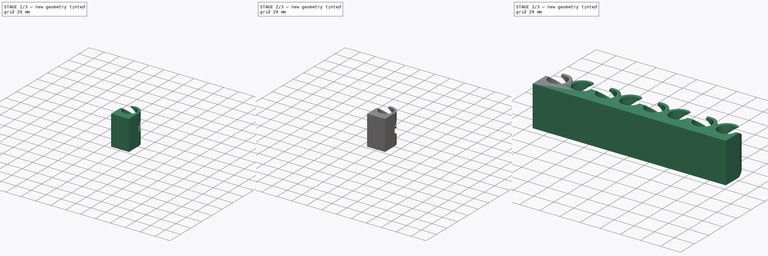
[diagram: build sequence overview — one tinted view per stage of 3, left to right]
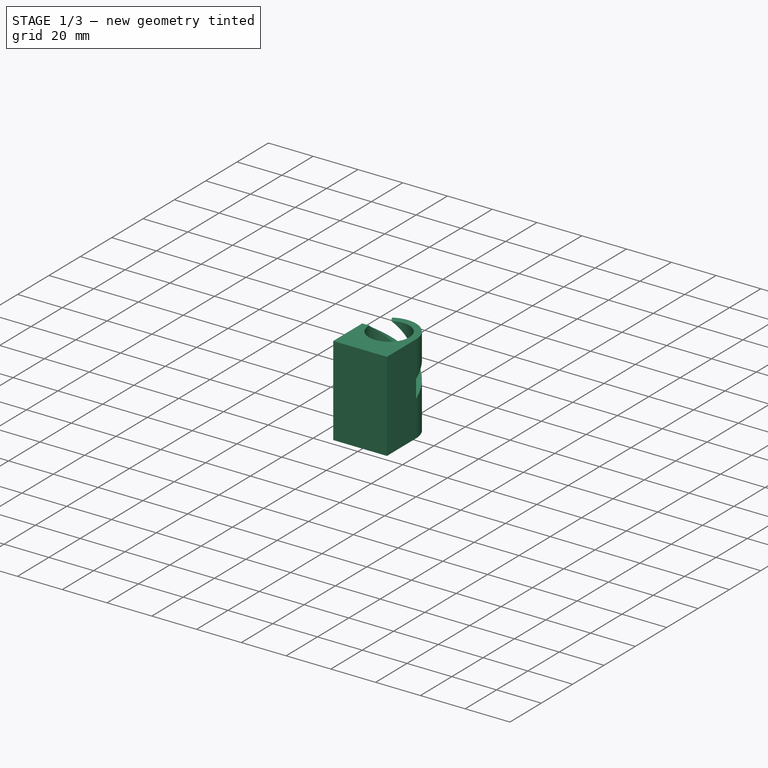
[diagram: stage 1 of 3 — iso view after this stage's code; geometry added in this stage tinted green]
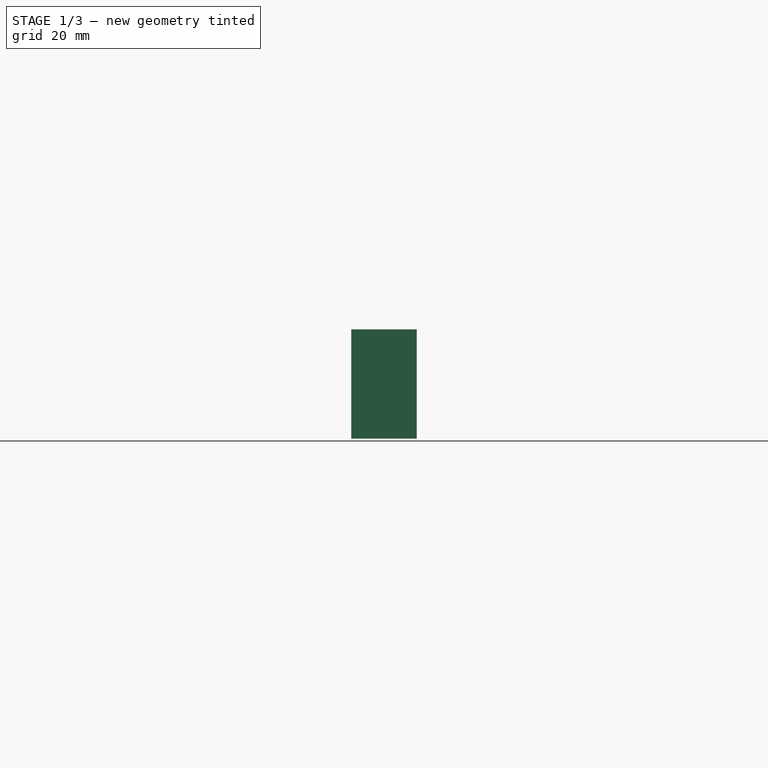
[diagram: stage 1 of 3 — front view after this stage's code; geometry added in this stage tinted green]
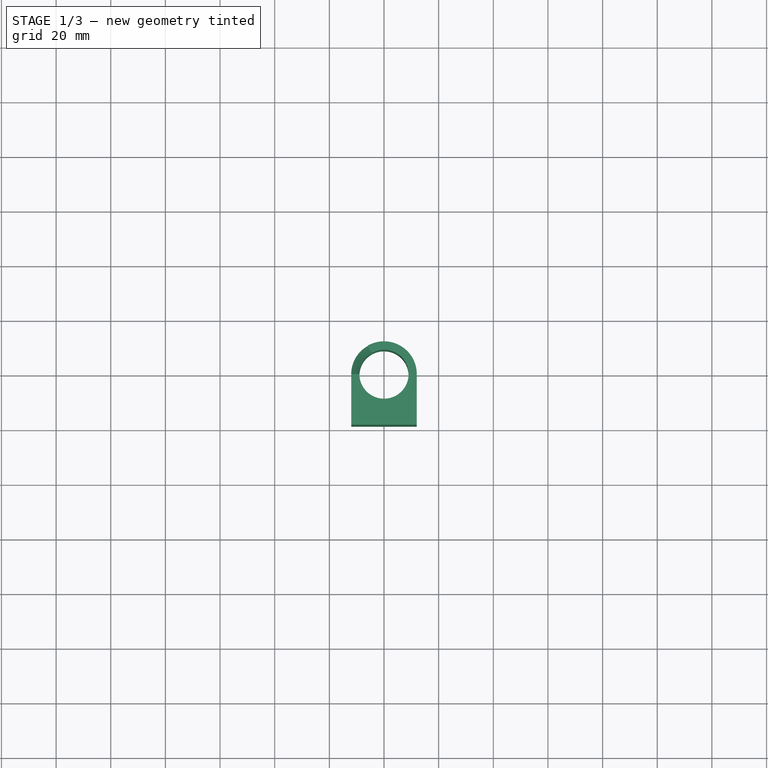
[diagram: stage 1 of 3 — top view after this stage's code; geometry added in this stage tinted green]
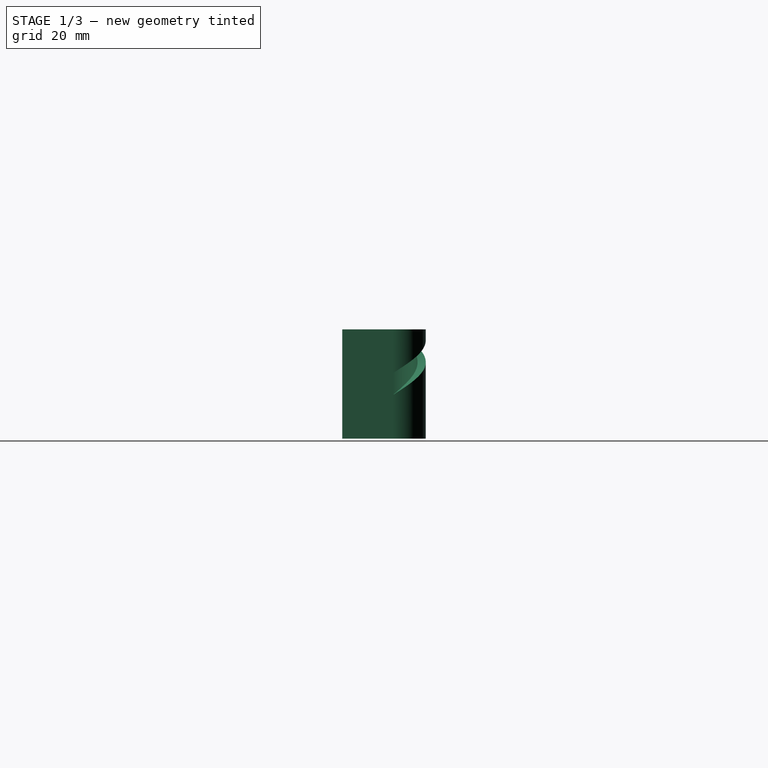
[diagram: stage 1 of 3 — right view after this stage's code; geometry added in this stage tinted green]
FCSTD DOCUMENT  (FreeCAD 1.1R20260325 (Git shallow))
Label: wire-holder
License: All rights reserved
LicenseURL: https://en.wikipedia.org/wiki/All_rights_reserved
objects: Sketcher::SketchObject×3, PartDesign::SubtractiveHelix×2, App::Point×1, PartDesign::Pad×1, PartDesign::Fillet×1, PartDesign::Pocket×1, PartDesign::Mirrored×1, PartDesign::LinearPattern×1, PartDesign::MultiTransform×1, PartDesign::Body×1
note: 28 computed .brp shape members not serialized (recipe doc carries the construction recipe); baked Part::Feature solids carry a one-line shape summary decoded from their .brp

FEATURE [App::Point] Origin001
  Role = Origin
FEATURE [Sketcher::SketchObject] Sketch
  ArcFitTolerance = 1e-06
  AttachmentSupport = -> [Origin]
  ExternalTypes = [0]
  FullyConstrained = false
  MakeInternals = true
  MapMode = 5
  _ExternalGeoVersion = 1
  sketch-geometry (5):
    g0: LineSegment StartX=-12 StartY=-18.5578 StartZ=0 EndX=12 EndY=-18.5578 EndZ=0
    g1: LineSegment StartX=12 StartY=-18.5578 StartZ=0 EndX=12 EndY=0 EndZ=0
    g2: LineSegment StartX=-12 StartY=0 StartZ=0 EndX=-12 EndY=-18.5578 EndZ=0
    g3: ArcOfCircle CenterX=0 CenterY=0 CenterZ=0 NormalX=0 NormalY=0 NormalZ=1 AngleXU=0 Radius=12 StartAngle=0 EndAngle=3.14159
    g4: Circle CenterX=0 CenterY=0 CenterZ=0 NormalX=0 NormalY=0 NormalZ=1 AngleXU=0 Radius=9
  constraints (11):
    c: Horizontal(g0)
    c: Vertical(g1)
    c: Vertical(g2)
    c: Coincident(g4,g3)
    c: Tangent(g3,g2) = -1.5708
    c: Tangent(g3,g1) = -1.5708
    c: Coincident(g0,g1)
    c: Coincident(g0,g2)
    c: Coincident(g3,g-1)
    c: Diameter(g4) = 18
    c: Radius(g3) = 12
FEATURE [PartDesign::Pad] Pad
  Direction = (0,0,1)
  Length = 40
  Length2 = 10
  Profile = -> Sketch
  ReferenceAxis = -> Sketch [N_Axis]
  Refine = true
  SideType = 2
  Suppressed = false
  Type = 0
  Type2 = 0
FEATURE [Sketcher::SketchObject] Sketch001
  ArcFitTolerance = 1e-06
  AttachmentOffset = pos=(10,0,0) rot=(0,0,1;0rad)
  AttachmentSupport = -> [Origin]
  ExternalTypes = [0]
  FullyConstrained = false
  MakeInternals = true
  MapMode = 5
  Placement = pos=(10,0,0) rot=(1,0,0;1.5708rad)
  _ExternalGeoVersion = 1
  sketch-geometry (5):
    g0: LineSegment StartX=-2.30408 StartY=4 StartZ=0 EndX=-2.30408 EndY=-4 EndZ=0
    g1: LineSegment StartX=-2.30408 StartY=-4 StartZ=0 EndX=2.30408 EndY=-4 EndZ=0
    g2: LineSegment StartX=2.30408 StartY=-4 StartZ=0 EndX=2.30408 EndY=4 EndZ=0
    g3: LineSegment StartX=2.30408 StartY=4 StartZ=0 EndX=-2.30408 EndY=4 EndZ=0
    g4: GeomPoint [constr] X=0 Y=0 Z=0
  constraints (11):
    c: Coincident(g0,g1)
    c: Coincident(g1,g2)
    c: Coincident(g2,g3)
    c: Coincident(g3,g0)
    c: Vertical(g0)
    c: Vertical(g2)
    c: Horizontal(g1)
    c: Horizontal(g3)
    c: Symmetric(g2,g0,g4)
    c: Coincident(g4,g-1)
    c: DistanceY(g2,g2) = 8
FEATURE [PartDesign::SubtractiveHelix] SubtractiveHelix
  Angle = 0
  Axis = (1e-16,1e-16,1)
  Base = (0,0,0)
  BaseFeature = -> Pad
  Growth = 0
  HasBeenEdited = true
  Height = 24
  LeftHanded = false
  Mode = 3
  Outside = false
  Pitch = 48
  Profile = -> Sketch001
  ReferenceAxis = -> Z_Axis
  Refine = true
  Suppressed = false
  Tolerance = 0.1
  Turns = 0.5
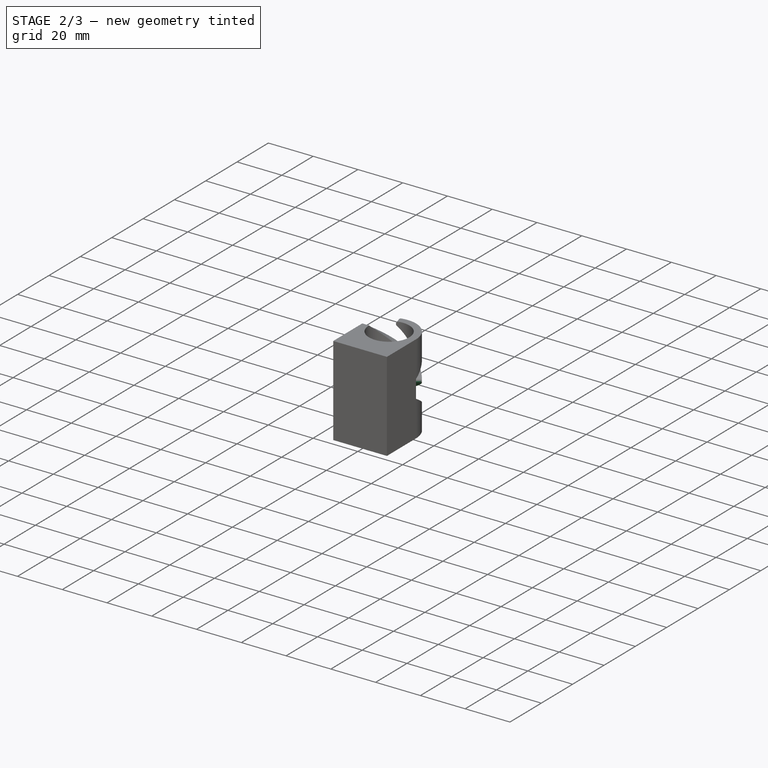
[diagram: stage 2 of 3 — iso view after this stage's code; geometry added in this stage tinted green]
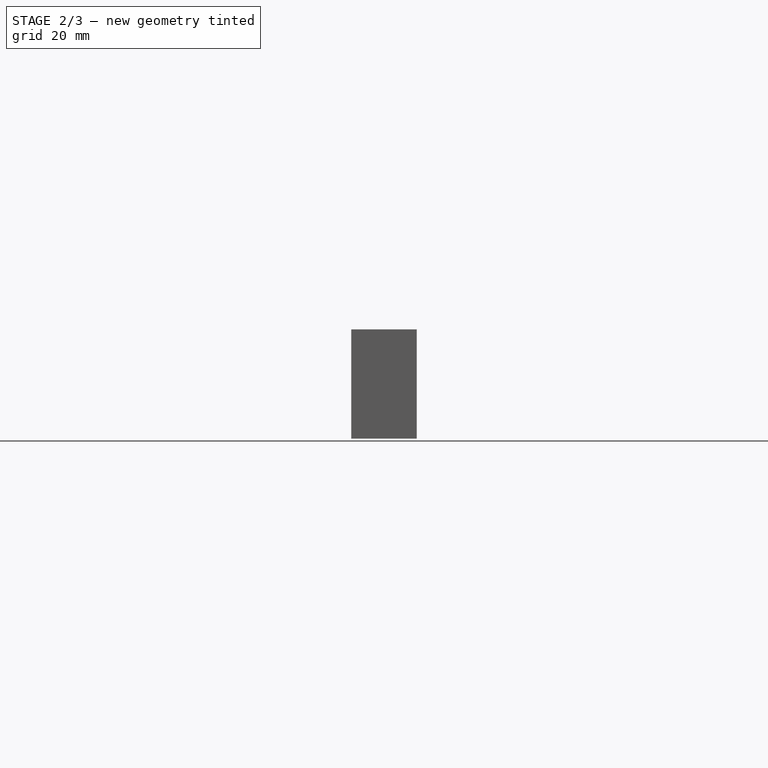
[diagram: stage 2 of 3 — front view after this stage's code; geometry added in this stage tinted green]
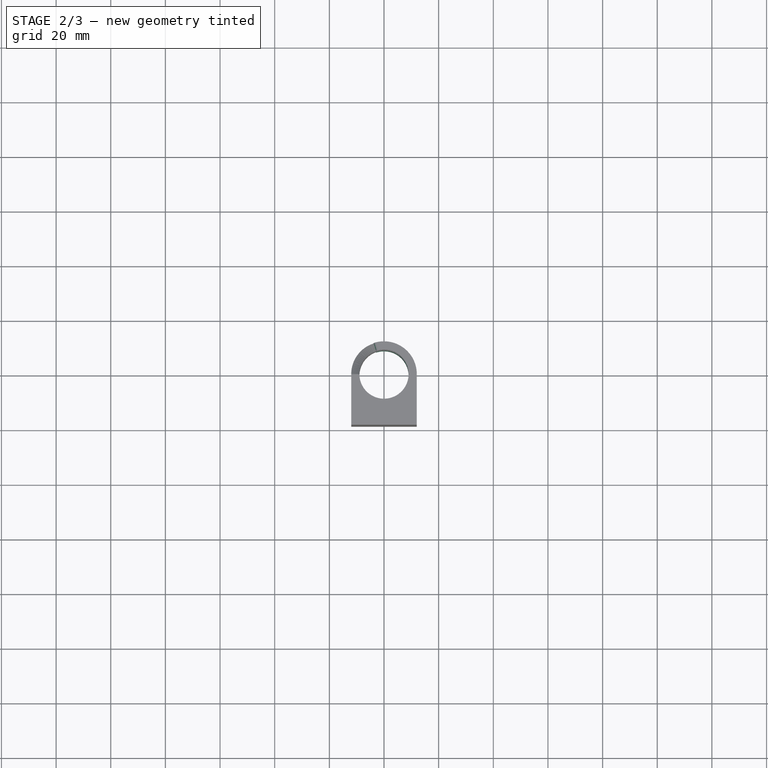
[diagram: stage 2 of 3 — top view after this stage's code; geometry added in this stage tinted green]
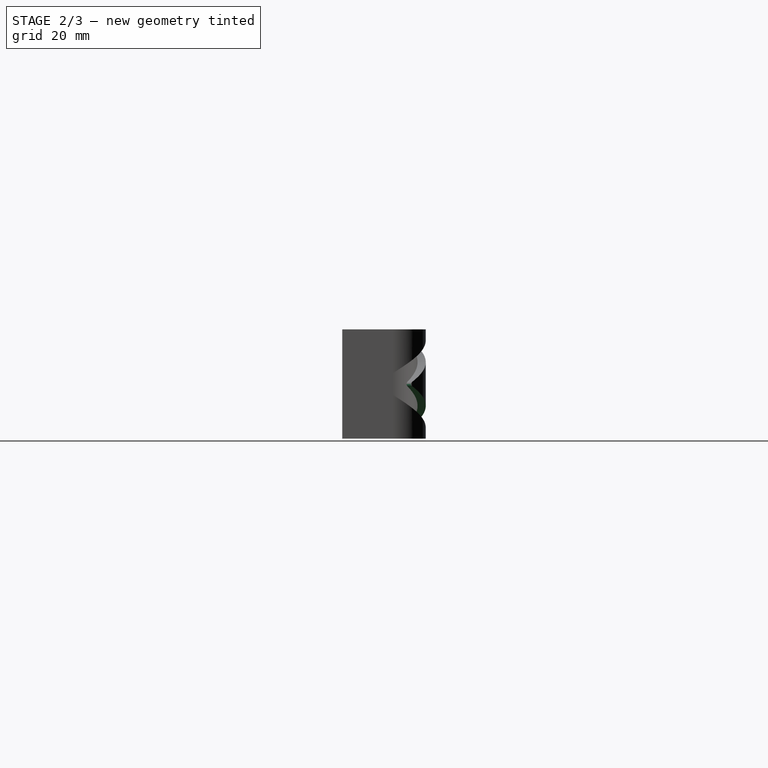
[diagram: stage 2 of 3 — right view after this stage's code; geometry added in this stage tinted green]
FEATURE [PartDesign::SubtractiveHelix] SubtractiveHelix001
  Angle = 0
  Axis = (1e-16,1e-16,1)
  Base = (0,0,0)
  BaseFeature = -> SubtractiveHelix
  Growth = 0
  HasBeenEdited = true
  Height = 24
  LeftHanded = true
  Mode = 3
  Outside = false
  Pitch = 48
  Profile = -> Sketch001
  ReferenceAxis = -> Z_Axis
  Refine = true
  Reversed = true
  Suppressed = false
  Tolerance = 0.1
  Turns = 0.5
FEATURE [PartDesign::Fillet] Fillet
  Base = -> SubtractiveHelix001 [Edge30,Edge21,Edge16]
  BaseFeature = -> SubtractiveHelix001
  Radius = 1
  Refine = true
  SupportTransform = false
  Suppressed = false
  UseAllEdges = false
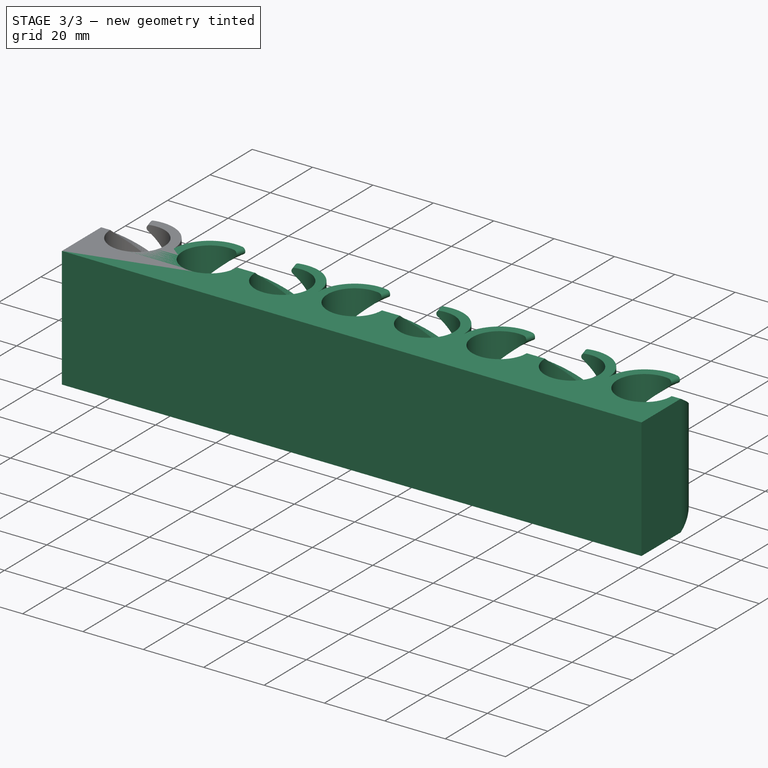
[diagram: stage 3 of 3 — iso view after this stage's code; geometry added in this stage tinted green]
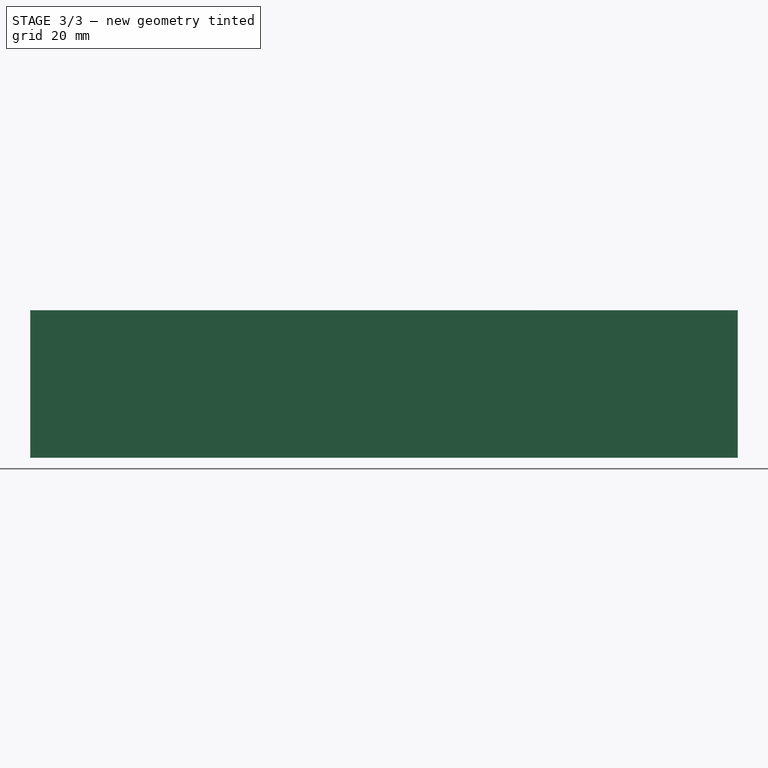
[diagram: stage 3 of 3 — front view after this stage's code; geometry added in this stage tinted green]
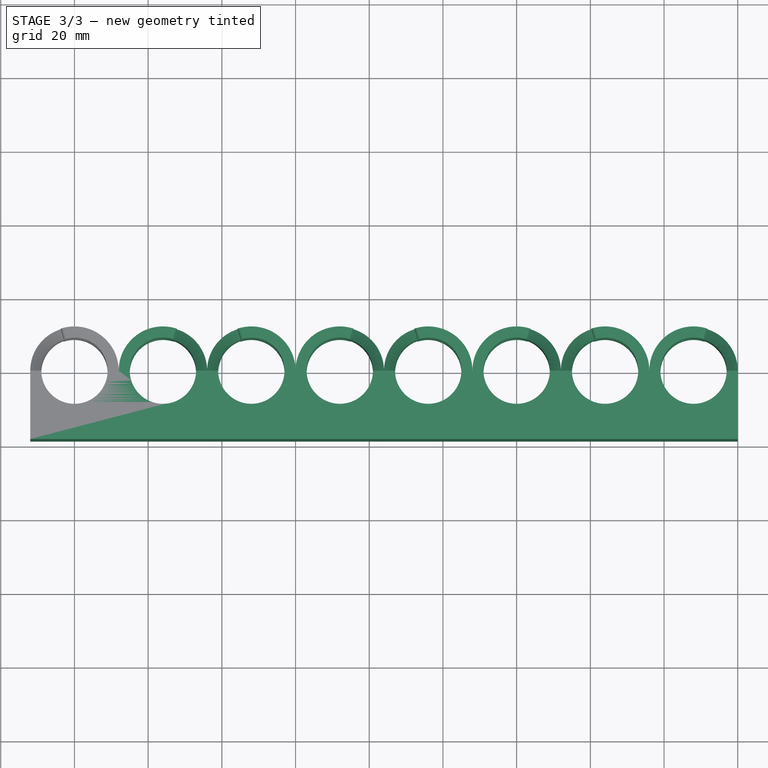
[diagram: stage 3 of 3 — top view after this stage's code; geometry added in this stage tinted green]
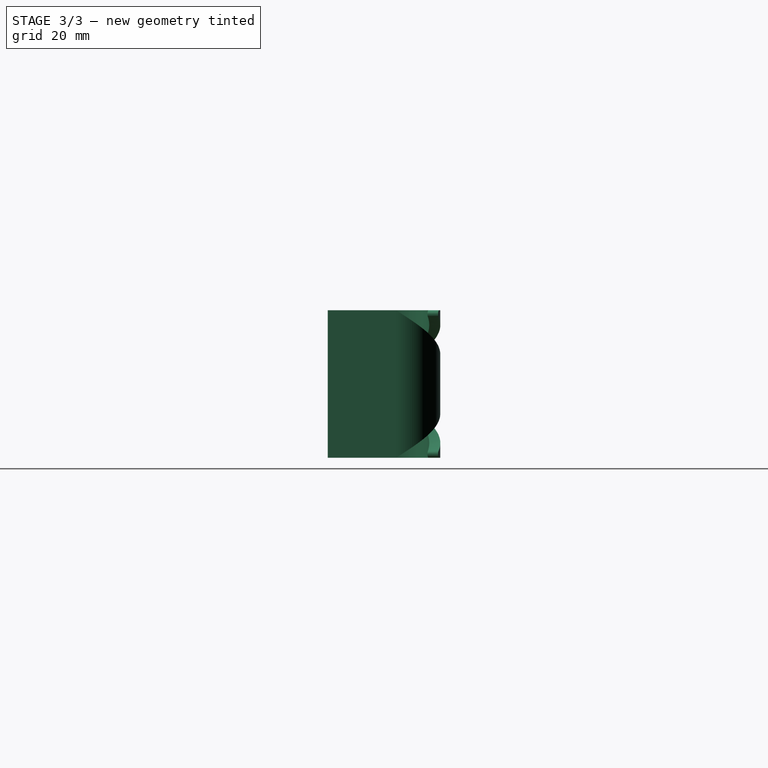
[diagram: stage 3 of 3 — right view after this stage's code; geometry added in this stage tinted green]
FEATURE [Sketcher::SketchObject] Sketch002
  ArcFitTolerance = 1e-06
  AttachmentSupport = -> [Origin]
  ExternalGeometry = -> [Fillet]
  ExternalTypes = [0]
  FullyConstrained = false
  MakeInternals = true
  MapMode = 5
  Placement = pos=(0,0,0) rot=(0.57735,0.57735,0.57735;2.0944rad)
  _ExternalGeoVersion = 1
  sketch-geometry (3):
    g0: ArcOfCircle CenterX=2.54648 CenterY=0 CenterZ=0 NormalX=0 NormalY=0 NormalZ=1 AngleXU=0 Radius=4.74179 StartAngle=2.13771 EndAngle=4.14548
    g1: LineSegment StartX=-4.4e-15 StartY=4 StartZ=0 EndX=-9.34938 EndY=-1.952 EndZ=0
    g2: LineSegment StartX=-4.4e-15 StartY=4 StartZ=0 EndX=-1.8e-15 EndY=-4 EndZ=0
  constraints (6):
    c: PointOnObject(g0,g-1)
    c: Tangent(g-3,g0) = 1.5708
    c: PointOnObject(g0,g-2)
    c: Tangent(g0,g1) = -1.5708
    c: Coincident(g0,g2)
    c: Coincident(g0,g2)
FEATURE [PartDesign::Pocket] Pocket
  BaseFeature = -> Fillet
  Direction = (-1,0,0)
  Length = 5
  Length2 = 5
  Profile = -> Sketch002 [InternalFace1]
  ReferenceAxis = -> Sketch002 [N_Axis]
  Refine = true
  Reversed = true
  SideType = 0
  Suppressed = false
  Type = 1
  Type2 = 0
FEATURE [PartDesign::Mirrored] Mirror
  MirrorPlane = -> Pocket [Face6]
  Refine = true
  Suppressed = false
  TransformMode = 0
FEATURE [PartDesign::LinearPattern] Linear_Pattern
  Direction = -> X_Axis
  Direction2 = -> X_Axis
  Length = 144
  Length2 = 100
  Mode = 1
  Mode2 = 0
  Occurrences = 4
  Occurrences2 = 1
  Offset = 48
  Offset2 = 100
  Refine = true
  Reversed2 = false
  SpacingPattern = [48]
  SpacingPattern2 = [0]
  Spacings = [-1,-1,-1]
  Suppressed = false
  TransformMode = 0
FEATURE [PartDesign::MultiTransform] MultiTransform
  BaseFeature = -> Pocket
  Refine = true
  Suppressed = false
  TransformMode = 1
  Transformations = -> [Mirror,Linear_Pattern]
FEATURE [PartDesign::Body] Body
  AllowCompound = true
  Group = -> [Sketch,Pad,Sketch001,SubtractiveHelix,SubtractiveHelix001,Fillet,Sketch002,Pocket,MultiTransform,Mirror,Linear_Pattern]
  Origin = -> Origin
  Tip = -> MultiTransform
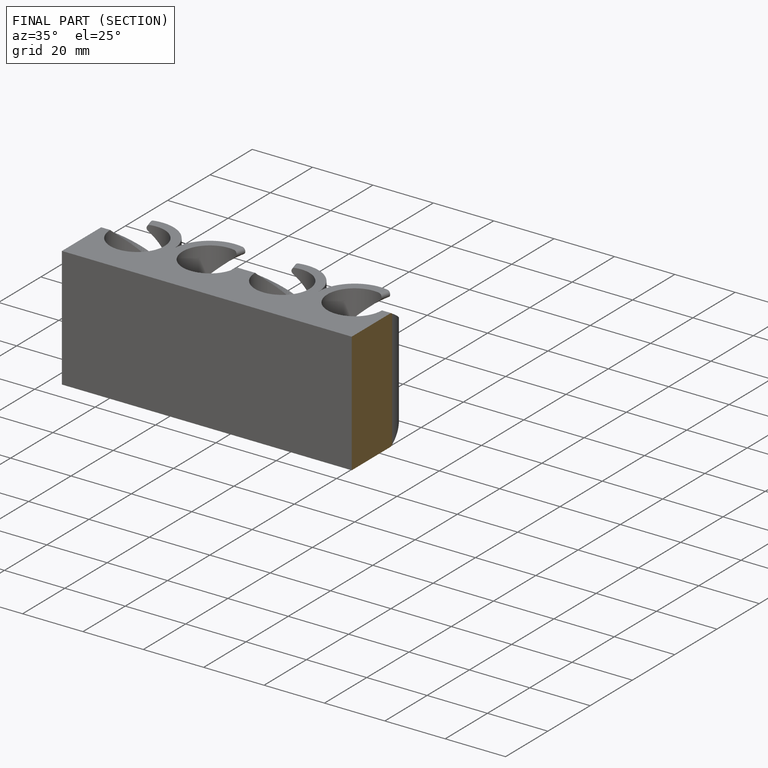
[diagram: finished part — half-section view (interior)]
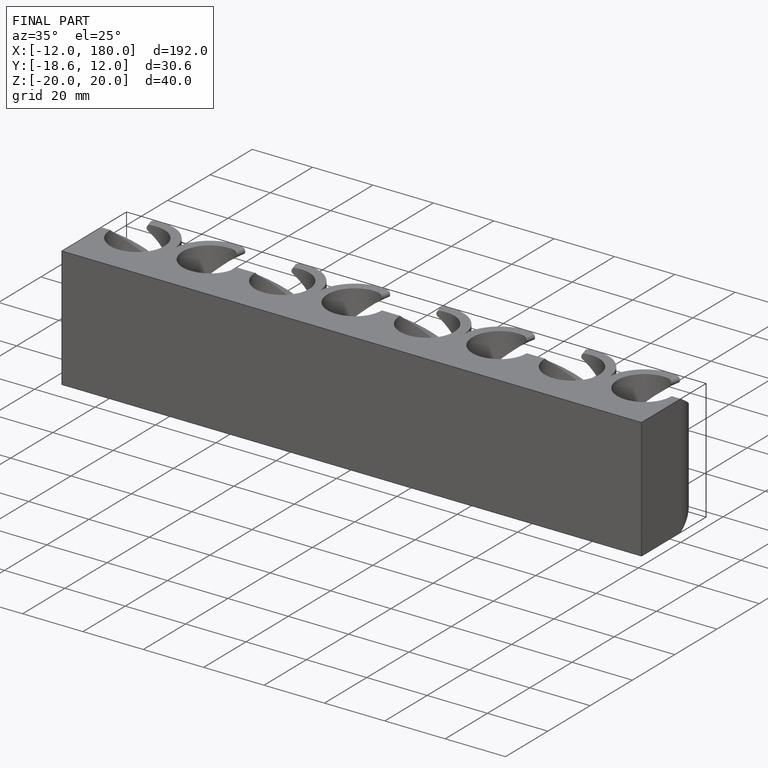
[diagram: finished part — iso view with bounding-box wireframe]
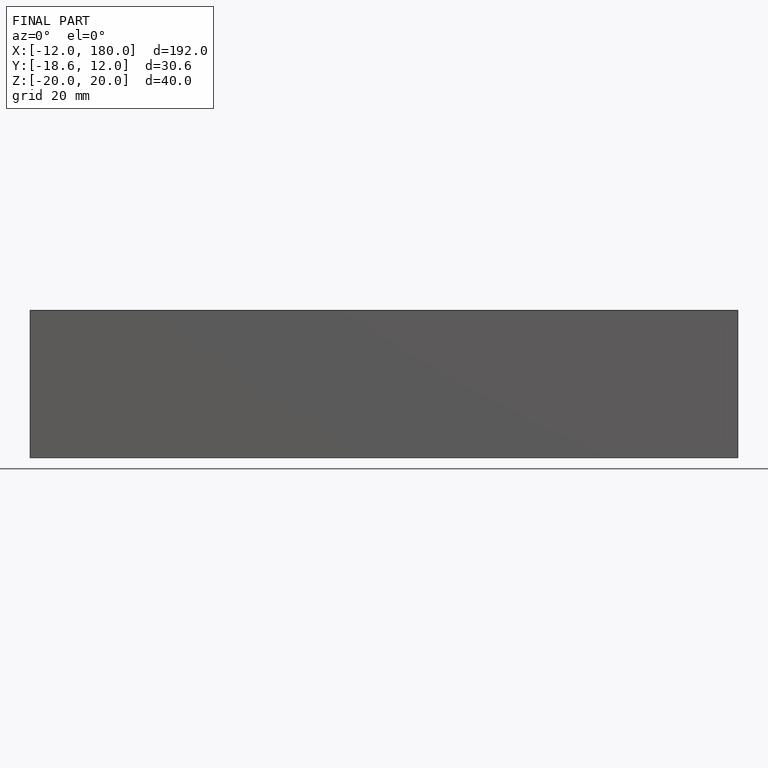
[diagram: finished part — front view with bounding-box wireframe]
